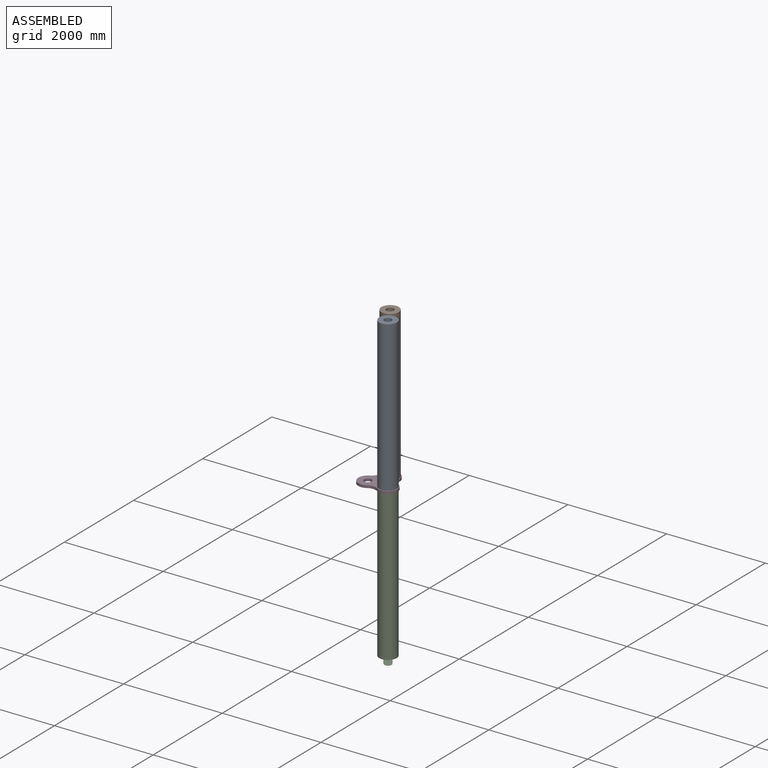
[diagram: assembled view]
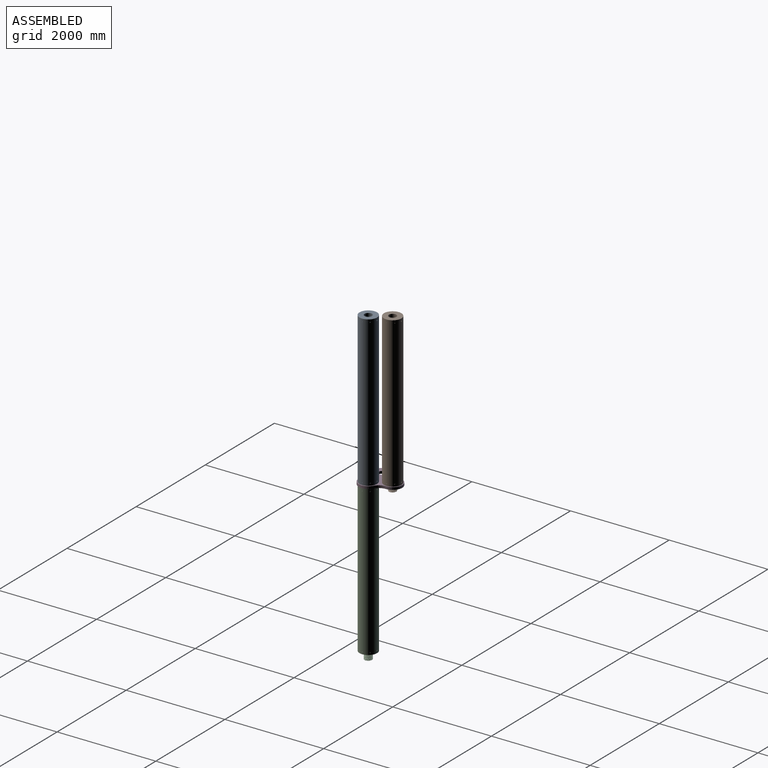
[diagram: assembled view, second angle]
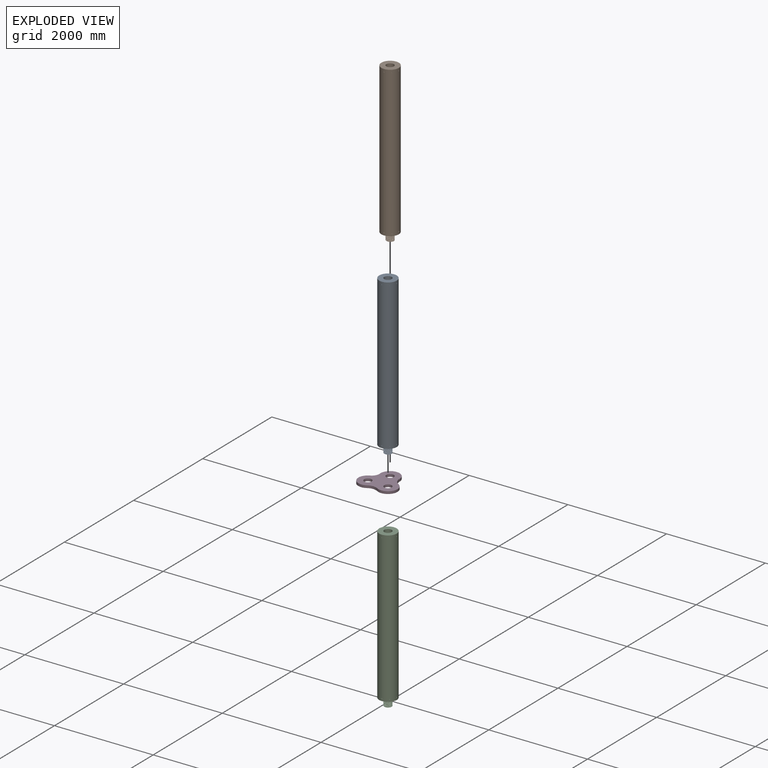
[diagram: exploded view]
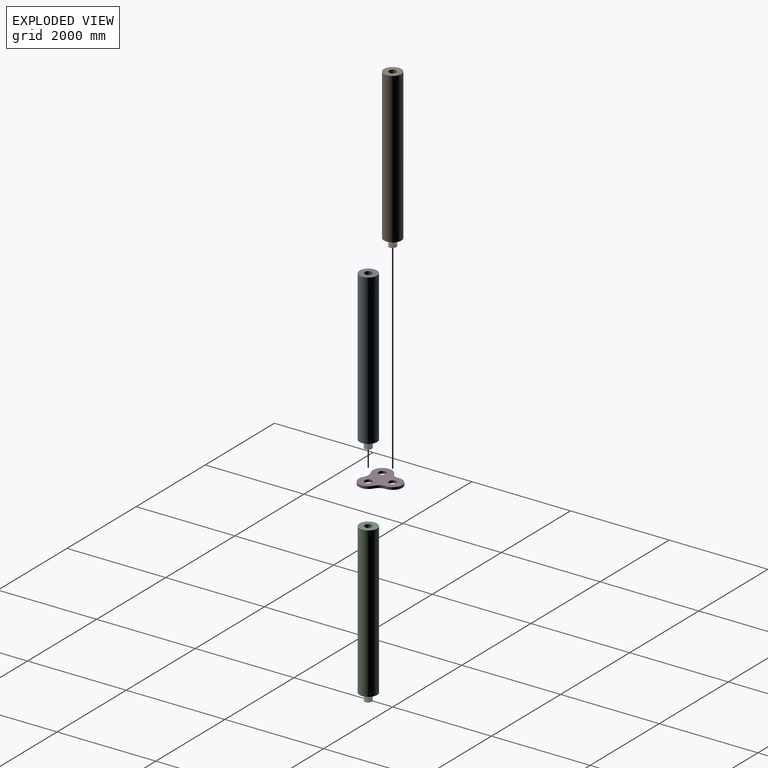
[diagram: exploded view, second angle]
ASSEMBLY  parts=4 mates=3
PART A: 53 faces, bbox 361.6x361.6x3212.7 mm
  f0: cylinder r=177.8mm len=3048mm, axis (0,0,-1), area 3400506.4mm2, adj f4,f5,f21,f23,f25,f27,f29,f31
  f1: bspline ~152.4x152.4mm, area 46144.7mm2, adj f2,f6,f7,f8,f9,f10,f11,f12
  f2: bspline ~134.68x134.68mm, area 4489.9mm2, adj f1,f3,f17,f20
  f3: bspline ~152.4x152.4mm, area 46147.7mm2, adj f2,f6,f7,f8,f9,f10,f11,f12
  f4: plane 355.6x355.6mm, normal (0,0,1), area 81073.2mm2, adj f0,f19
  f5: plane 355.6x355.6mm, normal (0,0,-1), area 81073.2mm2, adj f0,f15
  f6: cylinder r=76.2mm len=152.4mm, axis (0,0,1), area 760.1mm2, adj f1,f3,f7,f16
  f7: cylinder r=76.2mm len=152.4mm, axis (0,0,1), area 760mm2, adj f1,f3,f6,f8
  f8: cylinder r=76.2mm len=152.4mm, axis (0,0,1), area 760mm2, adj f1,f3,f7,f9
  f9: cylinder r=76.2mm len=152.4mm, axis (0,0,1), area 760.1mm2, adj f1,f3,f8,f10
  f10: cylinder r=76.2mm len=152.4mm, axis (0,0,1), area 760.2mm2, adj f1,f3,f9,f11
  f11: cylinder r=76.2mm len=152.4mm, axis (0,0,1), area 760.1mm2, adj f1,f3,f10,f12
  f12: cylinder r=76.2mm len=152.4mm, axis (0,0,1), area 760mm2, adj f1,f3,f11,f13
  f13: cylinder r=76.2mm len=152.4mm, axis (0,0,1), area 760mm2, adj f1,f3,f12,f14
  f14: cylinder r=76.2mm len=152.4mm, axis (0,0,1), area 760.1mm2, adj f1,f3,f13,f15
  f15: cylinder r=76.2mm len=152.4mm, axis (0,0,1), area 12873.5mm2, adj f1,f3,f5,f14,f20
  f16: cylinder r=76.2mm len=53.88mm, axis (0,0,1), area 47.5mm2, adj f3,f6,f17
  f17: plane 150.32x150.24mm, normal (0,0,-1), area 16317.4mm2, adj f1,f2,f3,f16
  f18: cone r=0mm half-angle=59deg, axis (0,0,1), area 21281.1mm2, adj f19
  f19: cylinder r=76.2mm len=152.4mm, axis (0,0,1), area 54724.4mm2, adj f4,f18
  f20: plane 158.4x158.4mm, normal (0,0,-1), area 1925.3mm2, adj f1,f2,f3,f15
  f21: cylinder r=9.53mm len=19.05mm, axis (0,1,0), area 581.8mm2, adj f0,f22
  f22: plane 19.05x19.05mm, normal (0,1,0), area 285mm2, adj f21
  f23: cylinder r=9.53mm len=19.05mm, axis (-1,0,0), area 581.8mm2, adj f0,f24
  f24: plane 19.05x19.05mm, normal (-1,0,0), area 285mm2, adj f23
  f25: cylinder r=9.53mm len=20.34mm, axis (-0.71,-0.71,0), area 581.8mm2, adj f0,f26
  f26: plane 19.05x13.47mm, normal (-0.71,-0.71,0), area 285mm2, adj f25
  f27: cylinder r=9.53mm len=20.34mm, axis (-0.71,-0.71,0), area 581.8mm2, adj f0,f28
  f28: plane 19.05x13.47mm, normal (-0.71,-0.71,0), area 285mm2, adj f27
  f29: cylinder r=9.53mm len=19.05mm, axis (0,-1,0), area 581.8mm2, adj f0,f30
  f30: plane 19.05x19.05mm, normal (0,-1,0), area 285mm2, adj f29
  f31: cylinder r=9.53mm len=20.34mm, axis (-0.71,0.71,0), area 581.8mm2, adj f0,f32
  f32: plane 19.05x13.47mm, normal (-0.71,0.71,0), area 285mm2, adj f31
  f33: cylinder r=9.53mm len=20.34mm, axis (-0.71,0.71,0), area 581.8mm2, adj f0,f34
  f34: plane 19.05x13.47mm, normal (-0.71,0.71,0), area 285mm2, adj f33
  f35: cylinder r=9.53mm len=19.05mm, axis (-1,0,0), area 581.8mm2, adj f0,f36
  f36: plane 19.05x19.05mm, normal (-1,0,0), area 285mm2, adj f35
  f37: cylinder r=9.53mm len=19.05mm, axis (1,0,0), area 581.8mm2, adj f0,f38
  f38: plane 19.05x19.05mm, normal (1,0,0), area 285mm2, adj f37
  f39: cylinder r=9.53mm len=20.34mm, axis (0.71,0.71,0), area 581.8mm2, adj f0,f40
  f40: plane 19.05x13.47mm, normal (0.71,0.71,0), area 285mm2, adj f39
  f41: cylinder r=9.53mm len=20.34mm, axis (0.71,0.71,0), area 581.8mm2, adj f0,f42
  f42: plane 19.05x13.47mm, normal (0.71,0.71,0), area 285mm2, adj f41
  f43: cylinder r=9.53mm len=19.05mm, axis (0,1,0), area 581.8mm2, adj f0,f44
  f44: plane 19.05x19.05mm, normal (0,1,0), area 285mm2, adj f43
  f45: cylinder r=9.53mm len=19.05mm, axis (0,-1,0), area 581.8mm2, adj f0,f46
  f46: plane 19.05x19.05mm, normal (0,-1,0), area 285mm2, adj f45
  f47: cylinder r=9.53mm len=20.34mm, axis (0.71,-0.71,0), area 581.8mm2, adj f0,f48
  f48: plane 19.05x13.47mm, normal (0.71,-0.71,0), area 285mm2, adj f47
  f49: cylinder r=9.53mm len=20.34mm, axis (0.71,-0.71,0), area 581.8mm2, adj f0,f50
  f50: plane 19.05x13.47mm, normal (0.71,-0.71,0), area 285mm2, adj f49
  f51: cylinder r=9.53mm len=19.05mm, axis (1,0,0), area 581.8mm2, adj f0,f52
  f52: plane 19.05x19.05mm, normal (1,0,0), area 285mm2, adj f51
PART B: same geometry as A
PART C: same geometry as A
PART D: 11 faces, bbox 793.8x739.3x50.8 mm
  f0: cylinder r=203.2mm len=180.2mm, axis (0,0,1), area 11097mm2, adj f1,f5,f7,f8
  f1: cylinder r=193.68mm len=387.35mm, axis (0,0,1), area 32068.7mm2, adj f0,f2,f7,f8
  f2: cylinder r=152.4mm len=154.99mm, axis (0,0,1), area 9716.7mm2, adj f1,f3,f7,f8
  f3: cylinder r=193.68mm len=370.54mm, axis (0,0,1), area 32068.7mm2, adj f2,f4,f7,f8
  f4: cylinder r=203.2mm len=208.08mm, axis (0,0,1), area 11097mm2, adj f3,f5,f7,f8
  f5: cylinder r=193.68mm len=362.73mm, axis (0,0,1), area 31182.9mm2, adj f0,f4,f7,f8
  f6: cylinder r=76.2mm len=152.4mm, axis (0,0,1), area 24322mm2, adj f7,f8
  f7: plane 793.75x739.3mm, normal (0,0,-1), area 335003.6mm2, adj f0,f1,f2,f3,f4,f5,f6,f9
  f8: plane 793.75x739.3mm, normal (0,0,1), area 335003.6mm2, adj f0,f1,f2,f3,f4,f5,f6,f9
  f9: cylinder r=76.2mm len=152.4mm, axis (0,0,1), area 24322mm2, adj f7,f8
  f10: cylinder r=76.2mm len=152.4mm, axis (0,0,1), area 24322mm2, adj f7,f8
PLACE A t=(203.2,-351.95,0)mm
PLACE B at identity
PLACE C t=(203.2,-351.95,-3098.8)mm
PLACE D at identity fixed
MATE fastened D.f5 <-> C.f18  axis (0,0,-1) through (203.2,-351.95,-50.8)mm
MATE fastened D.f6 <-> B.f0  axis (0,0,1) through (0,0,0)mm
MATE fastened D.f5 <-> A.f0  axis (0,0,1) through (203.2,-351.95,0)mm
